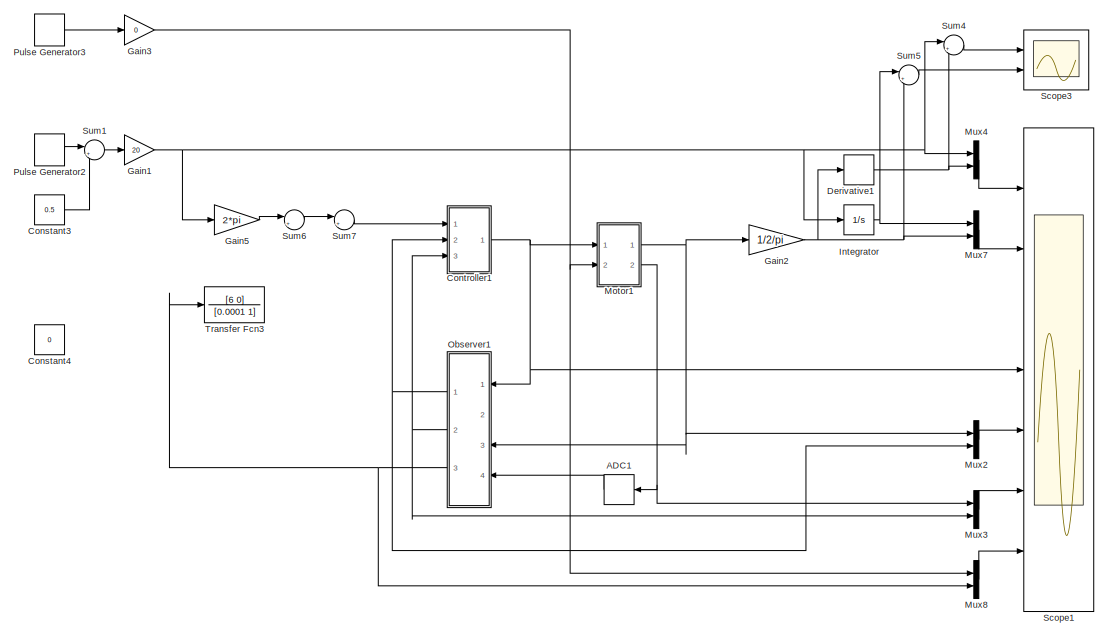
[diagram: root canvas - part 1/2, full width, top band]
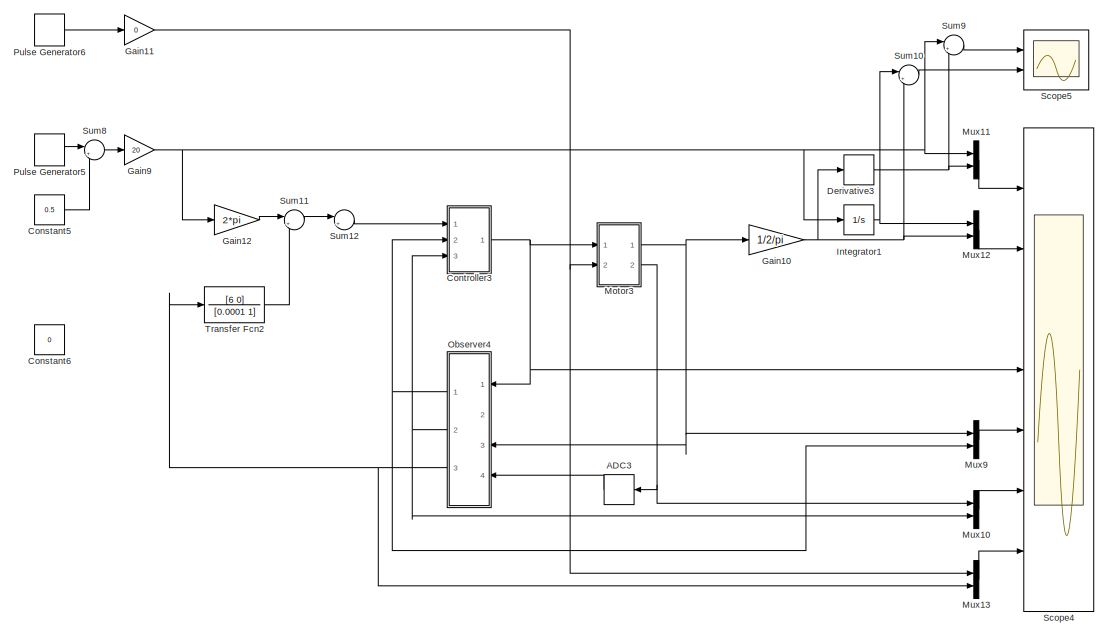
[diagram: root canvas - part 2/2, full width, bottom band]
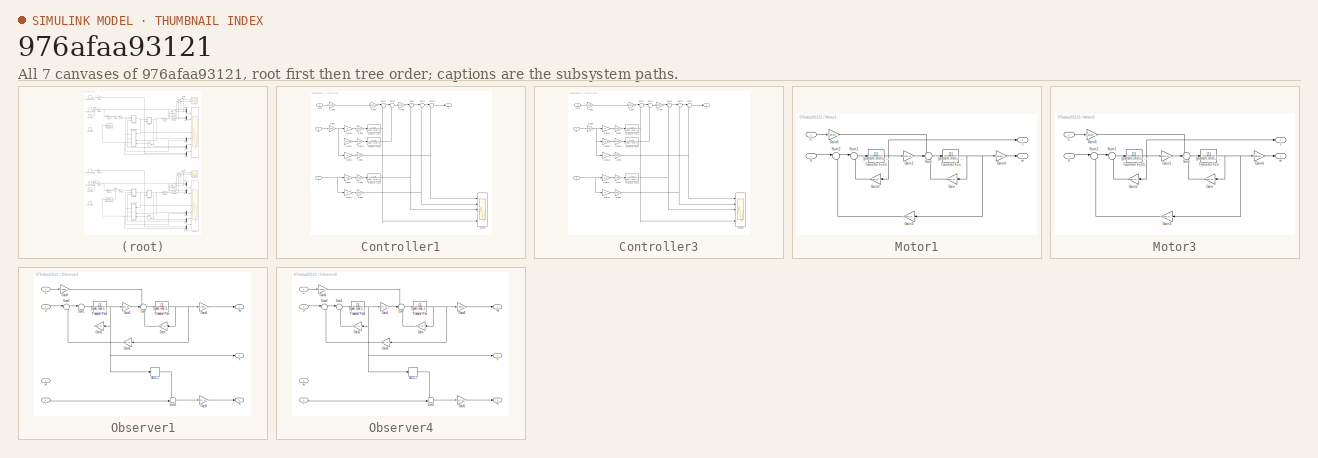
[diagram: thumbnail index - all 7 canvases of the model, root first then tree order]
MODEL slx_976afaa93121
KIND model
BLOCK [TransportDelay] ADC1
  DelayTime = 78/2/param.fadc
  Ports = [1, 1]
BLOCK [TransportDelay] ADC3
  DelayTime = 78/2/144000
  Ports = [1, 1]
BLOCK [Constant] Constant3
  Value = 0.5
BLOCK [Constant] Constant4
  Value = 0
BLOCK [Constant] Constant5
  Value = 0.5
BLOCK [Constant] Constant6
  Value = 0
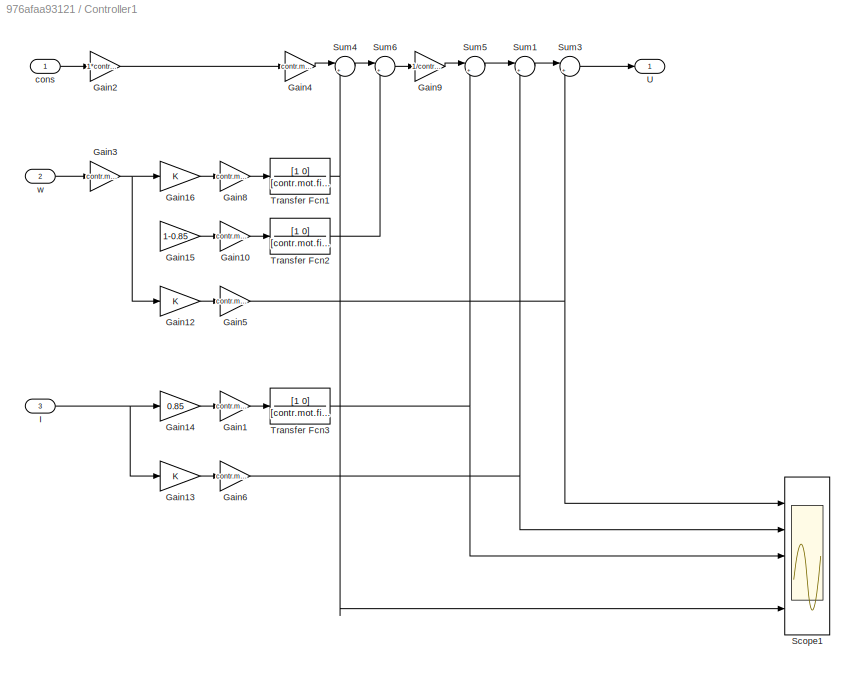
BLOCK [SubSystem] Controller1
  Ports = [3, 1]
  RequestExecContextInheritance = off
BLOCK [Gain] Controller1/Gain1
  Gain = contr.mot.L
  OutDataTypeStr = Inherit: Inherit via internal rule
  ParamDataTypeStr = Inherit: Inherit via internal rule
  SaturateOnIntegerOverflow = off
BLOCK [Gain] Controller1/Gain10
  Gain = contr.mot.f*contr.mot.L
  OutDataTypeStr = Inherit: Inherit via internal rule
  ParamDataTypeStr = Inherit: Inherit via internal rule
  SaturateOnIntegerOverflow = off
BLOCK [Gain] Controller1/Gain12
  OutDataTypeStr = Inherit: Inherit via internal rule
  ParamDataTypeStr = Inherit: Inherit via internal rule
  SaturateOnIntegerOverflow = off
BLOCK [Gain] Controller1/Gain13
  OutDataTypeStr = Inherit: Inherit via internal rule
  ParamDataTypeStr = Inherit: Inherit via internal rule
  SaturateOnIntegerOverflow = off
BLOCK [Gain] Controller1/Gain14
  Gain = 0.85
  OutDataTypeStr = Inherit: Inherit via internal rule
  ParamDataTypeStr = Inherit: Inherit via internal rule
  SaturateOnIntegerOverflow = off
BLOCK [Gain] Controller1/Gain15
  Gain = 1-0.85
  OutDataTypeStr = Inherit: Inherit via internal rule
  ParamDataTypeStr = Inherit: Inherit via internal rule
  SaturateOnIntegerOverflow = off
BLOCK [Gain] Controller1/Gain16
  OutDataTypeStr = Inherit: Inherit via internal rule
  ParamDataTypeStr = Inherit: Inherit via internal rule
  SaturateOnIntegerOverflow = off
BLOCK [Gain] Controller1/Gain2
  Gain = 1*contr.mot.rr/contr.mot.rn
  OutDataTypeStr = Inherit: Inherit via internal rule
  ParamDataTypeStr = Inherit: Inherit via internal rule
  SaturateOnIntegerOverflow = off
BLOCK [Gain] Controller1/Gain3
  Gain = contr.mot.rr
  OutDataTypeStr = Inherit: Inherit via internal rule
  ParamDataTypeStr = Inherit: Inherit via internal rule
  SaturateOnIntegerOverflow = off
BLOCK [Gain] Controller1/Gain4
  Gain = contr.mot.J
  OutDataTypeStr = Inherit: Inherit via internal rule
  ParamDataTypeStr = Inherit: Inherit via internal rule
  SaturateOnIntegerOverflow = off
BLOCK [Gain] Controller1/Gain5
  Gain = contr.mot.Ke
  OutDataTypeStr = Inherit: Inherit via internal rule
  ParamDataTypeStr = Inherit: Inherit via internal rule
  SaturateOnIntegerOverflow = off
BLOCK [Gain] Controller1/Gain6
  Gain = contr.mot.R
  OutDataTypeStr = Inherit: Inherit via internal rule
  ParamDataTypeStr = Inherit: Inherit via internal rule
  SaturateOnIntegerOverflow = off
BLOCK [Gain] Controller1/Gain8
  Gain = contr.mot.J
  OutDataTypeStr = Inherit: Inherit via internal rule
  ParamDataTypeStr = Inherit: Inherit via internal rule
  SaturateOnIntegerOverflow = off
BLOCK [Gain] Controller1/Gain9
  Gain = 1/contr.mot.Kc
  OutDataTypeStr = Inherit: Inherit via internal rule
  ParamDataTypeStr = Inherit: Inherit via internal rule
  SaturateOnIntegerOverflow = off
BLOCK [Inport] Controller1/I
  IconDisplay = Port number
  Port = 3
BLOCK [Scope] Controller1/Scope1
  Floating = off
  MaxDataPoints = 500000
  NumInputPorts = 5
  Ports = [5]
  SaveName = ScopeData1
  ShowLegends = off
  TimeRange = 10
  YMax = 30~5~1~1~0.04
  YMin = -30~-5~-1~-1~-0.04
BLOCK [Sum] Controller1/Sum1
  IconShape = round
  InputSameDT = off
  Inputs = |++
  OutDataTypeStr = Inherit: Inherit via internal rule
  Ports = [2, 1]
  SaturateOnIntegerOverflow = off
BLOCK [Sum] Controller1/Sum3
  IconShape = round
  InputSameDT = off
  Inputs = |++
  OutDataTypeStr = Inherit: Inherit via internal rule
  Ports = [2, 1]
  SaturateOnIntegerOverflow = off
BLOCK [Sum] Controller1/Sum4
  IconShape = round
  InputSameDT = off
  Inputs = |+-
  OutDataTypeStr = Inherit: Inherit via internal rule
  Ports = [2, 1]
  SaturateOnIntegerOverflow = off
BLOCK [Sum] Controller1/Sum5
  IconShape = round
  InputSameDT = off
  Inputs = |++
  OutDataTypeStr = Inherit: Inherit via internal rule
  Ports = [2, 1]
  SaturateOnIntegerOverflow = off
BLOCK [Sum] Controller1/Sum6
  IconShape = round
  InputSameDT = off
  Inputs = |++
  OutDataTypeStr = Inherit: Inherit via internal rule
  Ports = [2, 1]
  SaturateOnIntegerOverflow = off
BLOCK [TransferFcn] Controller1/Transfer Fcn1
  Denominator = [contr.mot.filter 1]
  Numerator = [1 0]
BLOCK [TransferFcn] Controller1/Transfer Fcn2
  Denominator = [contr.mot.filter 1]
  Numerator = [1 0]
BLOCK [TransferFcn] Controller1/Transfer Fcn3
  Denominator = [contr.mot.filter 1]
  Numerator = [1 0]
BLOCK [Outport] Controller1/U
  IconDisplay = Port number
BLOCK [Inport] Controller1/cons
  IconDisplay = Port number
BLOCK [Inport] Controller1/w
  IconDisplay = Port number
  Port = 2
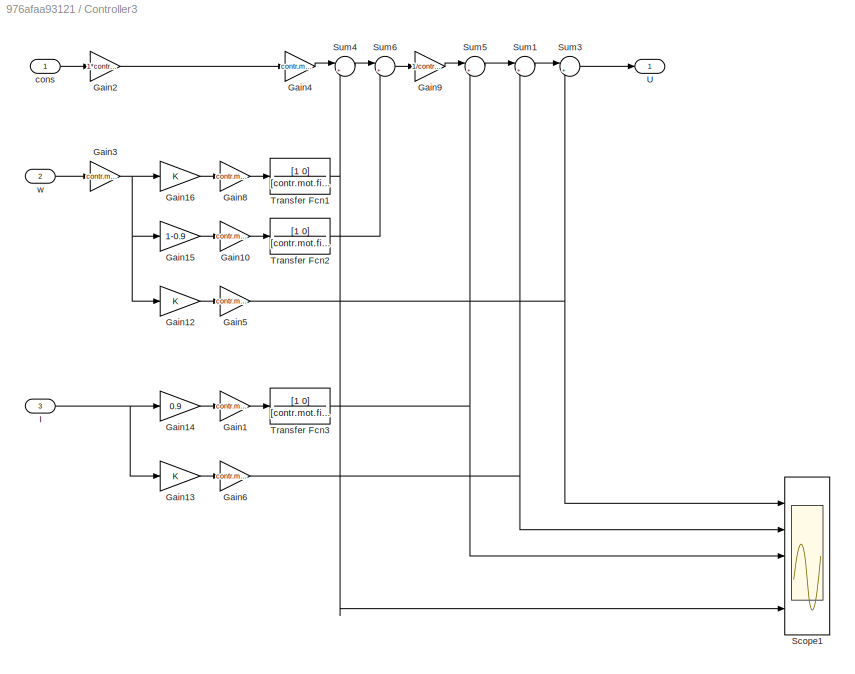
BLOCK [SubSystem] Controller3
  Ports = [3, 1]
  RequestExecContextInheritance = off
BLOCK [Gain] Controller3/Gain1
  Gain = contr.mot.L
  OutDataTypeStr = Inherit: Inherit via internal rule
  ParamDataTypeStr = Inherit: Inherit via internal rule
  SaturateOnIntegerOverflow = off
BLOCK [Gain] Controller3/Gain10
  Gain = contr.mot.f*contr.mot.L
  OutDataTypeStr = Inherit: Inherit via internal rule
  ParamDataTypeStr = Inherit: Inherit via internal rule
  SaturateOnIntegerOverflow = off
BLOCK [Gain] Controller3/Gain12
  OutDataTypeStr = Inherit: Inherit via internal rule
  ParamDataTypeStr = Inherit: Inherit via internal rule
  SaturateOnIntegerOverflow = off
BLOCK [Gain] Controller3/Gain13
  OutDataTypeStr = Inherit: Inherit via internal rule
  ParamDataTypeStr = Inherit: Inherit via internal rule
  SaturateOnIntegerOverflow = off
BLOCK [Gain] Controller3/Gain14
  Gain = 0.9
  OutDataTypeStr = Inherit: Inherit via internal rule
  ParamDataTypeStr = Inherit: Inherit via internal rule
  SaturateOnIntegerOverflow = off
BLOCK [Gain] Controller3/Gain15
  Gain = 1-0.9
  OutDataTypeStr = Inherit: Inherit via internal rule
  ParamDataTypeStr = Inherit: Inherit via internal rule
  SaturateOnIntegerOverflow = off
BLOCK [Gain] Controller3/Gain16
  OutDataTypeStr = Inherit: Inherit via internal rule
  ParamDataTypeStr = Inherit: Inherit via internal rule
  SaturateOnIntegerOverflow = off
BLOCK [Gain] Controller3/Gain2
  Gain = 1*contr.mot.rr/contr.mot.rn
  OutDataTypeStr = Inherit: Inherit via internal rule
  ParamDataTypeStr = Inherit: Inherit via internal rule
  SaturateOnIntegerOverflow = off
BLOCK [Gain] Controller3/Gain3
  Gain = contr.mot.rr
  OutDataTypeStr = Inherit: Inherit via internal rule
  ParamDataTypeStr = Inherit: Inherit via internal rule
  SaturateOnIntegerOverflow = off
BLOCK [Gain] Controller3/Gain4
  Gain = contr.mot.J
  OutDataTypeStr = Inherit: Inherit via internal rule
  ParamDataTypeStr = Inherit: Inherit via internal rule
  SaturateOnIntegerOverflow = off
BLOCK [Gain] Controller3/Gain5
  Gain = contr.mot.Ke
  OutDataTypeStr = Inherit: Inherit via internal rule
  ParamDataTypeStr = Inherit: Inherit via internal rule
  SaturateOnIntegerOverflow = off
BLOCK [Gain] Controller3/Gain6
  Gain = contr.mot.R
  OutDataTypeStr = Inherit: Inherit via internal rule
  ParamDataTypeStr = Inherit: Inherit via internal rule
  SaturateOnIntegerOverflow = off
BLOCK [Gain] Controller3/Gain8
  Gain = contr.mot.J
  OutDataTypeStr = Inherit: Inherit via internal rule
  ParamDataTypeStr = Inherit: Inherit via internal rule
  SaturateOnIntegerOverflow = off
BLOCK [Gain] Controller3/Gain9
  Gain = 1/contr.mot.Kc
  OutDataTypeStr = Inherit: Inherit via internal rule
  ParamDataTypeStr = Inherit: Inherit via internal rule
  SaturateOnIntegerOverflow = off
BLOCK [Inport] Controller3/I
  IconDisplay = Port number
  Port = 3
BLOCK [Scope] Controller3/Scope1
  Floating = off
  MaxDataPoints = 500000
  NumInputPorts = 5
  Ports = [5]
  SaveName = ScopeData1
  ShowLegends = off
  TimeRange = 10
  YMax = 30~5~1~1~0.04
  YMin = -30~-5~-1~-1~-0.04
BLOCK [Sum] Controller3/Sum1
  IconShape = round
  InputSameDT = off
  Inputs = |++
  OutDataTypeStr = Inherit: Inherit via internal rule
  Ports = [2, 1]
  SaturateOnIntegerOverflow = off
BLOCK [Sum] Controller3/Sum3
  IconShape = round
  InputSameDT = off
  Inputs = |++
  OutDataTypeStr = Inherit: Inherit via internal rule
  Ports = [2, 1]
  SaturateOnIntegerOverflow = off
BLOCK [Sum] Controller3/Sum4
  IconShape = round
  InputSameDT = off
  Inputs = |+-
  OutDataTypeStr = Inherit: Inherit via internal rule
  Ports = [2, 1]
  SaturateOnIntegerOverflow = off
BLOCK [Sum] Controller3/Sum5
  IconShape = round
  InputSameDT = off
  Inputs = |++
  OutDataTypeStr = Inherit: Inherit via internal rule
  Ports = [2, 1]
  SaturateOnIntegerOverflow = off
BLOCK [Sum] Controller3/Sum6
  IconShape = round
  InputSameDT = off
  Inputs = |++
  OutDataTypeStr = Inherit: Inherit via internal rule
  Ports = [2, 1]
  SaturateOnIntegerOverflow = off
BLOCK [TransferFcn] Controller3/Transfer Fcn1
  Denominator = [contr.mot.filter 1]
  Numerator = [1 0]
BLOCK [TransferFcn] Controller3/Transfer Fcn2
  Denominator = [contr.mot.filter 1]
  Numerator = [1 0]
BLOCK [TransferFcn] Controller3/Transfer Fcn3
  Denominator = [contr.mot.filter 1]
  Numerator = [1 0]
BLOCK [Outport] Controller3/U
  IconDisplay = Port number
BLOCK [Inport] Controller3/cons
  IconDisplay = Port number
BLOCK [Inport] Controller3/w
  IconDisplay = Port number
  Port = 2
BLOCK [Derivative] Derivative1
BLOCK [Derivative] Derivative3
BLOCK [Gain] Gain1
  Gain = 20
  OutDataTypeStr = Inherit: Inherit via internal rule
  ParamDataTypeStr = Inherit: Inherit via internal rule
  SaturateOnIntegerOverflow = off
BLOCK [Gain] Gain10
  Gain = 1/2/pi
  OutDataTypeStr = Inherit: Inherit via internal rule
  ParamDataTypeStr = Inherit: Inherit via internal rule
  SaturateOnIntegerOverflow = off
BLOCK [Gain] Gain11
  Gain = 0
  OutDataTypeStr = Inherit: Inherit via internal rule
  ParamDataTypeStr = Inherit: Inherit via internal rule
  SaturateOnIntegerOverflow = off
BLOCK [Gain] Gain12
  Gain = 2*pi
  OutDataTypeStr = Inherit: Inherit via internal rule
  ParamDataTypeStr = Inherit: Inherit via internal rule
  SaturateOnIntegerOverflow = off
BLOCK [Gain] Gain2
  Gain = 1/2/pi
  OutDataTypeStr = Inherit: Inherit via internal rule
  ParamDataTypeStr = Inherit: Inherit via internal rule
  SaturateOnIntegerOverflow = off
BLOCK [Gain] Gain3
  Gain = 0
  OutDataTypeStr = Inherit: Inherit via internal rule
  ParamDataTypeStr = Inherit: Inherit via internal rule
  SaturateOnIntegerOverflow = off
BLOCK [Gain] Gain5
  Gain = 2*pi
  OutDataTypeStr = Inherit: Inherit via internal rule
  ParamDataTypeStr = Inherit: Inherit via internal rule
  SaturateOnIntegerOverflow = off
BLOCK [Gain] Gain9
  Gain = 20
  OutDataTypeStr = Inherit: Inherit via internal rule
  ParamDataTypeStr = Inherit: Inherit via internal rule
  SaturateOnIntegerOverflow = off
BLOCK [Integrator] Integrator
  Ports = [1, 1]
BLOCK [Integrator] Integrator1
  Ports = [1, 1]
BLOCK [SubSystem] Motor1
  Ports = [2, 2]
  RequestExecContextInheritance = off
BLOCK [Inport] Motor1/C
  IconDisplay = Port number
  Port = 2
BLOCK [Gain] Motor1/Gain
  Gain = param.mot.f
  OutDataTypeStr = Inherit: Inherit via internal rule
  ParamDataTypeStr = Inherit: Inherit via internal rule
  SaturateOnIntegerOverflow = off
BLOCK [Gain] Motor1/Gain1
  Gain = param.mot.Kc
  OutDataTypeStr = Inherit: Inherit via internal rule
  ParamDataTypeStr = Inherit: Inherit via internal rule
  SaturateOnIntegerOverflow = off
BLOCK [Gain] Motor1/Gain2
  Gain = param.mot.R
  OutDataTypeStr = Inherit: Inherit via internal rule
  ParamDataTypeStr = Inherit: Inherit via internal rule
  SaturateOnIntegerOverflow = off
BLOCK [Gain] Motor1/Gain3
  Gain = param.mot.Ke
  OutDataTypeStr = Inherit: Inherit via internal rule
  ParamDataTypeStr = Inherit: Inherit via internal rule
  SaturateOnIntegerOverflow = off
BLOCK [Gain] Motor1/Gain4
  Gain = 1/param.mot.rr
  OutDataTypeStr = Inherit: Inherit via internal rule
  ParamDataTypeStr = Inherit: Inherit via internal rule
  SaturateOnIntegerOverflow = off
BLOCK [Gain] Motor1/Gain6
  Gain = 1/param.mot.rr/param.mot.rn
  OutDataTypeStr = Inherit: Inherit via internal rule
  ParamDataTypeStr = Inherit: Inherit via internal rule
  SaturateOnIntegerOverflow = off
BLOCK [Outport] Motor1/I
  IconDisplay = Port number
  Port = 2
BLOCK [Sum] Motor1/Sum
  IconShape = round
  InputSameDT = off
  Inputs = -+-
  OutDataTypeStr = Inherit: Inherit via internal rule
  Ports = [3, 1]
  SaturateOnIntegerOverflow = off
BLOCK [Sum] Motor1/Sum1
  IconShape = round
  InputSameDT = off
  Inputs = |+-
  OutDataTypeStr = Inherit: Inherit via internal rule
  Ports = [2, 1]
  SaturateOnIntegerOverflow = off
BLOCK [Sum] Motor1/Sum2
  IconShape = round
  InputSameDT = off
  Inputs = |+-
  OutDataTypeStr = Inherit: Inherit via internal rule
  Ports = [2, 1]
  SaturateOnIntegerOverflow = off
BLOCK [TransferFcn] Motor1/Transfer Fcn
  Denominator = [param.mot.J 0]
BLOCK [TransferFcn] Motor1/Transfer Fcn1
  Denominator = [param.mot.L 0]
BLOCK [Inport] Motor1/U
  IconDisplay = Port number
BLOCK [Outport] Motor1/w
  IconDisplay = Port number
BLOCK [SubSystem] Motor3
  Ports = [2, 2]
  RequestExecContextInheritance = off
BLOCK [Inport] Motor3/C
  IconDisplay = Port number
  Port = 2
BLOCK [Gain] Motor3/Gain
  Gain = param.mot.f
  OutDataTypeStr = Inherit: Inherit via internal rule
  ParamDataTypeStr = Inherit: Inherit via internal rule
  SaturateOnIntegerOverflow = off
BLOCK [Gain] Motor3/Gain1
  Gain = param.mot.Kc
  OutDataTypeStr = Inherit: Inherit via internal rule
  ParamDataTypeStr = Inherit: Inherit via internal rule
  SaturateOnIntegerOverflow = off
BLOCK [Gain] Motor3/Gain2
  Gain = param.mot.R
  OutDataTypeStr = Inherit: Inherit via internal rule
  ParamDataTypeStr = Inherit: Inherit via internal rule
  SaturateOnIntegerOverflow = off
BLOCK [Gain] Motor3/Gain3
  Gain = param.mot.Ke
  OutDataTypeStr = Inherit: Inherit via internal rule
  ParamDataTypeStr = Inherit: Inherit via internal rule
  SaturateOnIntegerOverflow = off
BLOCK [Gain] Motor3/Gain4
  Gain = 1/param.mot.rr
  OutDataTypeStr = Inherit: Inherit via internal rule
  ParamDataTypeStr = Inherit: Inherit via internal rule
  SaturateOnIntegerOverflow = off
BLOCK [Gain] Motor3/Gain6
  Gain = 1/param.mot.rr/param.mot.rn
  OutDataTypeStr = Inherit: Inherit via internal rule
  ParamDataTypeStr = Inherit: Inherit via internal rule
  SaturateOnIntegerOverflow = off
BLOCK [Outport] Motor3/I
  IconDisplay = Port number
  Port = 2
BLOCK [Sum] Motor3/Sum
  IconShape = round
  InputSameDT = off
  Inputs = -+-
  OutDataTypeStr = Inherit: Inherit via internal rule
  Ports = [3, 1]
  SaturateOnIntegerOverflow = off
BLOCK [Sum] Motor3/Sum1
  IconShape = round
  InputSameDT = off
  Inputs = |+-
  OutDataTypeStr = Inherit: Inherit via internal rule
  Ports = [2, 1]
  SaturateOnIntegerOverflow = off
BLOCK [Sum] Motor3/Sum2
  IconShape = round
  InputSameDT = off
  Inputs = |+-
  OutDataTypeStr = Inherit: Inherit via internal rule
  Ports = [2, 1]
  SaturateOnIntegerOverflow = off
BLOCK [TransferFcn] Motor3/Transfer Fcn
  Denominator = [param.mot.J 0]
BLOCK [TransferFcn] Motor3/Transfer Fcn1
  Denominator = [param.mot.L 0]
BLOCK [Inport] Motor3/U
  IconDisplay = Port number
BLOCK [Outport] Motor3/w
  IconDisplay = Port number
BLOCK [Mux] Mux10
  DisplayOption = bar
  Inputs = 2
  Ports = [2, 1]
BLOCK [Mux] Mux11
  DisplayOption = bar
  Inputs = 2
  Ports = [2, 1]
BLOCK [Mux] Mux12
  DisplayOption = bar
  Inputs = 2
  Ports = [2, 1]
BLOCK [Mux] Mux13
  DisplayOption = bar
  Inputs = 2
  Ports = [2, 1]
BLOCK [Mux] Mux2
  DisplayOption = bar
  Inputs = 2
  Ports = [2, 1]
BLOCK [Mux] Mux3
  DisplayOption = bar
  Inputs = 2
  Ports = [2, 1]
BLOCK [Mux] Mux4
  DisplayOption = bar
  Inputs = 2
  Ports = [2, 1]
BLOCK [Mux] Mux7
  DisplayOption = bar
  Inputs = 2
  Ports = [2, 1]
BLOCK [Mux] Mux8
  DisplayOption = bar
  Inputs = 2
  Ports = [2, 1]
BLOCK [Mux] Mux9
  DisplayOption = bar
  Inputs = 2
  Ports = [2, 1]
BLOCK [SubSystem] Observer1
  Ports = [4, 3]
  RequestExecContextInheritance = off
BLOCK [TransportDelay] Observer1/ADC1
  DelayTime = 78/2/param.fadc
  Ports = [1, 1]
BLOCK [Inport] Observer1/C
  IconDisplay = Port number
  Port = 2
BLOCK [Gain] Observer1/Gain
  Gain = contr.mot.f
  OutDataTypeStr = Inherit: Inherit via internal rule
  ParamDataTypeStr = Inherit: Inherit via internal rule
  SaturateOnIntegerOverflow = off
BLOCK [Gain] Observer1/Gain1
  Gain = contr.mot.Kc
  OutDataTypeStr = Inherit: Inherit via internal rule
  ParamDataTypeStr = Inherit: Inherit via internal rule
  SaturateOnIntegerOverflow = off
BLOCK [Gain] Observer1/Gain2
  Gain = contr.mot.R
  OutDataTypeStr = Inherit: Inherit via internal rule
  ParamDataTypeStr = Inherit: Inherit via internal rule
  SaturateOnIntegerOverflow = off
BLOCK [Gain] Observer1/Gain3
  Gain = contr.mot.Ke
  OutDataTypeStr = Inherit: Inherit via internal rule
  ParamDataTypeStr = Inherit: Inherit via internal rule
  SaturateOnIntegerOverflow = off
BLOCK [Gain] Observer1/Gain4
  Gain = 1/contr.mot.rr
  OutDataTypeStr = Inherit: Inherit via internal rule
  ParamDataTypeStr = Inherit: Inherit via internal rule
  SaturateOnIntegerOverflow = off
BLOCK [Gain] Observer1/Gain5
  Gain = contr.mot.Kc*contr.mot.rr*contr.mot.rn
  OutDataTypeStr = Inherit: Inherit via internal rule
  ParamDataTypeStr = Inherit: Inherit via internal rule
  SaturateOnIntegerOverflow = off
BLOCK [Gain] Observer1/Gain6
  Gain = 1/contr.mot.rr/contr.mot.rn
  OutDataTypeStr = Inherit: Inherit via internal rule
  ParamDataTypeStr = Inherit: Inherit via internal rule
  SaturateOnIntegerOverflow = off
BLOCK [Inport] Observer1/I
  IconDisplay = Port number
  Port = 4
BLOCK [Sum] Observer1/Sum
  IconShape = round
  InputSameDT = off
  Inputs = -+-
  OutDataTypeStr = Inherit: Inherit via internal rule
  Ports = [3, 1]
  SaturateOnIntegerOverflow = off
BLOCK [Sum] Observer1/Sum1
  IconShape = round
  InputSameDT = off
  Inputs = |+-
  OutDataTypeStr = Inherit: Inherit via internal rule
  Ports = [2, 1]
  SaturateOnIntegerOverflow = off
BLOCK [Sum] Observer1/Sum2
  IconShape = round
  InputSameDT = off
  Inputs = |+-
  OutDataTypeStr = Inherit: Inherit via internal rule
  Ports = [2, 1]
  SaturateOnIntegerOverflow = off
BLOCK [Sum] Observer1/Sum3
  IconShape = round
  InputSameDT = off
  Inputs = -+|
  OutDataTypeStr = Inherit: Inherit via internal rule
  Ports = [2, 1]
  SaturateOnIntegerOverflow = off
BLOCK [TransferFcn] Observer1/Transfer Fcn
  Denominator = [contr.mot.J 0]
BLOCK [TransferFcn] Observer1/Transfer Fcn1
  Denominator = [contr.mot.L contr.mot.R]
BLOCK [Inport] Observer1/U
  IconDisplay = Port number
BLOCK [Outport] Observer1/^C
  IconDisplay = Port number
  Port = 3
BLOCK [Outport] Observer1/^I
  IconDisplay = Port number
  Port = 2
BLOCK [Outport] Observer1/^w
  IconDisplay = Port number
BLOCK [Inport] Observer1/w
  IconDisplay = Port number
  Port = 3
BLOCK [SubSystem] Observer4
  Ports = [4, 3]
  RequestExecContextInheritance = off
BLOCK [TransportDelay] Observer4/ADC1
  DelayTime = 78/2/144000
  Ports = [1, 1]
BLOCK [Inport] Observer4/C
  IconDisplay = Port number
  Port = 2
BLOCK [Gain] Observer4/Gain
  Gain = contr.mot.f
  OutDataTypeStr = Inherit: Inherit via internal rule
  ParamDataTypeStr = Inherit: Inherit via internal rule
  SaturateOnIntegerOverflow = off
BLOCK [Gain] Observer4/Gain1
  Gain = contr.mot.Kc
  OutDataTypeStr = Inherit: Inherit via internal rule
  ParamDataTypeStr = Inherit: Inherit via internal rule
  SaturateOnIntegerOverflow = off
BLOCK [Gain] Observer4/Gain2
  Gain = contr.mot.R
  OutDataTypeStr = Inherit: Inherit via internal rule
  ParamDataTypeStr = Inherit: Inherit via internal rule
  SaturateOnIntegerOverflow = off
BLOCK [Gain] Observer4/Gain3
  Gain = contr.mot.Ke
  OutDataTypeStr = Inherit: Inherit via internal rule
  ParamDataTypeStr = Inherit: Inherit via internal rule
  SaturateOnIntegerOverflow = off
BLOCK [Gain] Observer4/Gain4
  Gain = 1/contr.mot.rr
  OutDataTypeStr = Inherit: Inherit via internal rule
  ParamDataTypeStr = Inherit: Inherit via internal rule
  SaturateOnIntegerOverflow = off
BLOCK [Gain] Observer4/Gain5
  Gain = contr.mot.Kc*contr.mot.rr*contr.mot.rn
  OutDataTypeStr = Inherit: Inherit via internal rule
  ParamDataTypeStr = Inherit: Inherit via internal rule
  SaturateOnIntegerOverflow = off
BLOCK [Gain] Observer4/Gain6
  Gain = 1/contr.mot.rr/contr.mot.rn
  OutDataTypeStr = Inherit: Inherit via internal rule
  ParamDataTypeStr = Inherit: Inherit via internal rule
  SaturateOnIntegerOverflow = off
BLOCK [Inport] Observer4/I
  IconDisplay = Port number
  Port = 4
BLOCK [Sum] Observer4/Sum
  IconShape = round
  InputSameDT = off
  Inputs = -+-
  OutDataTypeStr = Inherit: Inherit via internal rule
  Ports = [3, 1]
  SaturateOnIntegerOverflow = off
BLOCK [Sum] Observer4/Sum1
  IconShape = round
  InputSameDT = off
  Inputs = |+-
  OutDataTypeStr = Inherit: Inherit via internal rule
  Ports = [2, 1]
  SaturateOnIntegerOverflow = off
BLOCK [Sum] Observer4/Sum2
  IconShape = round
  InputSameDT = off
  Inputs = |+-
  OutDataTypeStr = Inherit: Inherit via internal rule
  Ports = [2, 1]
  SaturateOnIntegerOverflow = off
BLOCK [Sum] Observer4/Sum3
  IconShape = round
  InputSameDT = off
  Inputs = -+|
  OutDataTypeStr = Inherit: Inherit via internal rule
  Ports = [2, 1]
  SaturateOnIntegerOverflow = off
BLOCK [TransferFcn] Observer4/Transfer Fcn
  Denominator = [contr.mot.J 0]
BLOCK [TransferFcn] Observer4/Transfer Fcn1
  Denominator = [contr.mot.L 0]
BLOCK [Inport] Observer4/U
  IconDisplay = Port number
BLOCK [Outport] Observer4/^C
  IconDisplay = Port number
  Port = 3
BLOCK [Outport] Observer4/^I
  IconDisplay = Port number
  Port = 2
BLOCK [Outport] Observer4/^w
  IconDisplay = Port number
BLOCK [Inport] Observer4/w
  IconDisplay = Port number
  Port = 3
BLOCK [DiscretePulseGenerator] Pulse Generator2
  Period = 1
  PhaseDelay = 0.25
  Ports = [0, 1]
  PulseType = Time based
  PulseWidth = 50
BLOCK [DiscretePulseGenerator] Pulse Generator3
  Period = 0.35
  PhaseDelay = 0.3
  Ports = [0, 1]
  PulseType = Time based
  PulseWidth = 50
BLOCK [DiscretePulseGenerator] Pulse Generator5
  Period = 1
  PhaseDelay = 0.25
  Ports = [0, 1]
  PulseType = Time based
  PulseWidth = 50
BLOCK [DiscretePulseGenerator] Pulse Generator6
  Period = 0.35
  PhaseDelay = 0.3
  Ports = [0, 1]
  PulseType = Time based
  PulseWidth = 50
BLOCK [Scope] Scope1
  Floating = off
  MaxDataPoints = 500000
  NumInputPorts = 7
  Ports = [7]
  SaveName = ScopeData2
  ShowLegends = off
  TimeRange = 3
  YMax = 20~4~1~20~20~1~1
  YMin = -20~-4~-1~-20~-20~-1~-1
BLOCK [Scope] Scope3
  Floating = off
  MaxDataPoints = 500000
  NumInputPorts = 2
  Ports = [2]
  SaveName = ScopeData3
  ShowLegends = off
  TimeRange = 3
  YMax = 25~0.0025
  YMin = -25~-0.0025
  ZoomMode = yonly
BLOCK [Scope] Scope4
  Floating = off
  MaxDataPoints = 500000
  NumInputPorts = 7
  Ports = [7]
  SaveName = ScopeData4
  ShowLegends = off
  TimeRange = 3
  YMax = 20~4~1~20~20~1~1
  YMin = -20~-4~-1~-20~-20~-1~-1
BLOCK [Scope] Scope5
  Floating = off
  MaxDataPoints = 500000
  NumInputPorts = 2
  Ports = [2]
  SaveName = ScopeData5
  ShowLegends = off
  TimeRange = 3
  YMax = 25~0.0025
  YMin = -25~-0.0025
  ZoomMode = yonly
BLOCK [Sum] Sum1
  IconShape = round
  InputSameDT = off
  Inputs = |+-
  OutDataTypeStr = Inherit: Inherit via internal rule
  Ports = [2, 1]
  SaturateOnIntegerOverflow = off
BLOCK [Sum] Sum10
  IconShape = round
  InputSameDT = off
  Inputs = |+-
  OutDataTypeStr = Inherit: Inherit via internal rule
  Ports = [2, 1]
  SaturateOnIntegerOverflow = off
BLOCK [Sum] Sum11
  IconShape = round
  InputSameDT = off
  Inputs = |++
  OutDataTypeStr = Inherit: Inherit via internal rule
  Ports = [2, 1]
  SaturateOnIntegerOverflow = off
BLOCK [Sum] Sum12
  IconShape = round
  InputSameDT = off
  Inputs = |++
  OutDataTypeStr = Inherit: Inherit via internal rule
  Ports = [2, 1]
  SaturateOnIntegerOverflow = off
BLOCK [Sum] Sum4
  IconShape = round
  InputSameDT = off
  Inputs = |+-
  OutDataTypeStr = Inherit: Inherit via internal rule
  Ports = [2, 1]
  SaturateOnIntegerOverflow = off
BLOCK [Sum] Sum5
  IconShape = round
  InputSameDT = off
  Inputs = |+-
  OutDataTypeStr = Inherit: Inherit via internal rule
  Ports = [2, 1]
  SaturateOnIntegerOverflow = off
BLOCK [Sum] Sum6
  IconShape = round
  InputSameDT = off
  Inputs = |++
  OutDataTypeStr = Inherit: Inherit via internal rule
  Ports = [2, 1]
  SaturateOnIntegerOverflow = off
BLOCK [Sum] Sum7
  IconShape = round
  InputSameDT = off
  Inputs = |++
  OutDataTypeStr = Inherit: Inherit via internal rule
  Ports = [2, 1]
  SaturateOnIntegerOverflow = off
BLOCK [Sum] Sum8
  IconShape = round
  InputSameDT = off
  Inputs = |+-
  OutDataTypeStr = Inherit: Inherit via internal rule
  Ports = [2, 1]
  SaturateOnIntegerOverflow = off
BLOCK [Sum] Sum9
  IconShape = round
  InputSameDT = off
  Inputs = |+-
  OutDataTypeStr = Inherit: Inherit via internal rule
  Ports = [2, 1]
  SaturateOnIntegerOverflow = off
BLOCK [TransferFcn] Transfer Fcn2
  Denominator = [0.0001 1]
  Numerator = [6 0]
BLOCK [TransferFcn] Transfer Fcn3
  Denominator = [0.0001 1]
  Numerator = [6 0]
LINE ADC1:1 -> Observer1:4
LINE ADC3:1 -> Observer4:4
LINE Constant3:1 -> Sum1:2
LINE Constant5:1 -> Sum8:2
LINE Controller1/Gain10:1 -> Controller1/Transfer Fcn2:1
LINE Controller1/Gain12:1 -> Controller1/Gain5:1
LINE Controller1/Gain13:1 -> Controller1/Gain6:1
LINE Controller1/Gain14:1 -> Controller1/Gain1:1
LINE Controller1/Gain15:1 -> Controller1/Gain10:1
LINE Controller1/Gain16:1 -> Controller1/Gain8:1
LINE Controller1/Gain1:1 -> Controller1/Transfer Fcn3:1
LINE Controller1/Gain2:1 -> Controller1/Gain4:1
NET Controller1/Gain3:1 -> Controller1/Gain12:1, Controller1/Gain16:1
LINE Controller1/Gain4:1 -> Controller1/Sum4:1
NET Controller1/Gain5:1 -> Controller1/Scope1:1, Controller1/Sum3:2
NET Controller1/Gain6:1 -> Controller1/Scope1:2, Controller1/Sum1:2
LINE Controller1/Gain8:1 -> Controller1/Transfer Fcn1:1
LINE Controller1/Gain9:1 -> Controller1/Sum5:1
NET Controller1/I:1 -> Controller1/Gain13:1, Controller1/Gain14:1
LINE Controller1/Sum1:1 -> Controller1/Sum3:1
LINE Controller1/Sum3:1 -> Controller1/U:1
LINE Controller1/Sum4:1 -> Controller1/Sum6:1
LINE Controller1/Sum5:1 -> Controller1/Sum1:1
LINE Controller1/Sum6:1 -> Controller1/Gain9:1
NET Controller1/Transfer Fcn1:1 -> Controller1/Scope1:5, Controller1/Sum4:2
LINE Controller1/Transfer Fcn2:1 -> Controller1/Sum6:2
NET Controller1/Transfer Fcn3:1 -> Controller1/Scope1:3, Controller1/Sum5:2
LINE Controller1/cons:1 -> Controller1/Gain2:1
LINE Controller1/w:1 -> Controller1/Gain3:1
NET Controller1:1 -> Motor1:1, Observer1:1, Scope1:4
LINE Controller3/Gain10:1 -> Controller3/Transfer Fcn2:1
LINE Controller3/Gain12:1 -> Controller3/Gain5:1
LINE Controller3/Gain13:1 -> Controller3/Gain6:1
LINE Controller3/Gain14:1 -> Controller3/Gain1:1
LINE Controller3/Gain15:1 -> Controller3/Gain10:1
LINE Controller3/Gain16:1 -> Controller3/Gain8:1
LINE Controller3/Gain1:1 -> Controller3/Transfer Fcn3:1
LINE Controller3/Gain2:1 -> Controller3/Gain4:1
NET Controller3/Gain3:1 -> Controller3/Gain12:1, Controller3/Gain15:1, Controller3/Gain16:1
LINE Controller3/Gain4:1 -> Controller3/Sum4:1
NET Controller3/Gain5:1 -> Controller3/Scope1:1, Controller3/Sum3:2
NET Controller3/Gain6:1 -> Controller3/Scope1:2, Controller3/Sum1:2
LINE Controller3/Gain8:1 -> Controller3/Transfer Fcn1:1
LINE Controller3/Gain9:1 -> Controller3/Sum5:1
NET Controller3/I:1 -> Controller3/Gain13:1, Controller3/Gain14:1
LINE Controller3/Sum1:1 -> Controller3/Sum3:1
LINE Controller3/Sum3:1 -> Controller3/U:1
LINE Controller3/Sum4:1 -> Controller3/Sum6:1
LINE Controller3/Sum5:1 -> Controller3/Sum1:1
LINE Controller3/Sum6:1 -> Controller3/Gain9:1
NET Controller3/Transfer Fcn1:1 -> Controller3/Scope1:5, Controller3/Sum4:2
LINE Controller3/Transfer Fcn2:1 -> Controller3/Sum6:2
NET Controller3/Transfer Fcn3:1 -> Controller3/Scope1:3, Controller3/Sum5:2
LINE Controller3/cons:1 -> Controller3/Gain2:1
LINE Controller3/w:1 -> Controller3/Gain3:1
NET Controller3:1 -> Motor3:1, Observer4:1, Scope4:4
NET Derivative1:1 -> Mux4:2, Sum4:2
NET Derivative3:1 -> Mux11:2, Sum9:2
NET Gain10:1 -> Derivative3:1, Mux12:2, Sum10:2
NET Gain11:1 -> Motor3:2, Mux13:1
LINE Gain12:1 -> Sum11:1
NET Gain1:1 -> Gain5:1, Integrator:1, Mux4:1, Sum4:1
NET Gain2:1 -> Derivative1:1, Mux7:2, Sum5:2
NET Gain3:1 -> Motor1:2, Mux8:1
LINE Gain5:1 -> Sum6:1
NET Gain9:1 -> Gain12:1, Integrator1:1, Mux11:1, Sum9:1
NET Integrator1:1 -> Mux12:1, Sum10:1
NET Integrator:1 -> Mux7:1, Sum5:1
LINE Motor1/C:1 -> Motor1/Gain6:1
LINE Motor1/Gain1:1 -> Motor1/Sum:2
LINE Motor1/Gain2:1 -> Motor1/Sum1:2
LINE Motor1/Gain3:1 -> Motor1/Sum2:2
LINE Motor1/Gain4:1 -> Motor1/w:1
LINE Motor1/Gain6:1 -> Motor1/Sum:1
LINE Motor1/Gain:1 -> Motor1/Sum:3
LINE Motor1/Sum1:1 -> Motor1/Transfer Fcn1:1
LINE Motor1/Sum2:1 -> Motor1/Sum1:1
LINE Motor1/Sum:1 -> Motor1/Transfer Fcn:1
NET Motor1/Transfer Fcn1:1 -> Motor1/Gain1:1, Motor1/Gain2:1, Motor1/I:1
NET Motor1/Transfer Fcn:1 -> Motor1/Gain3:1, Motor1/Gain4:1, Motor1/Gain:1
LINE Motor1/U:1 -> Motor1/Sum2:1
NET Motor1:1 -> Gain2:1, Mux2:1, Observer1:3
NET Motor1:2 -> ADC1:1, Mux3:1
LINE Motor3/C:1 -> Motor3/Gain6:1
LINE Motor3/Gain1:1 -> Motor3/Sum:2
LINE Motor3/Gain2:1 -> Motor3/Sum1:2
LINE Motor3/Gain3:1 -> Motor3/Sum2:2
LINE Motor3/Gain4:1 -> Motor3/w:1
LINE Motor3/Gain6:1 -> Motor3/Sum:1
LINE Motor3/Gain:1 -> Motor3/Sum:3
LINE Motor3/Sum1:1 -> Motor3/Transfer Fcn1:1
LINE Motor3/Sum2:1 -> Motor3/Sum1:1
LINE Motor3/Sum:1 -> Motor3/Transfer Fcn:1
NET Motor3/Transfer Fcn1:1 -> Motor3/Gain1:1, Motor3/Gain2:1, Motor3/I:1
NET Motor3/Transfer Fcn:1 -> Motor3/Gain3:1, Motor3/Gain4:1, Motor3/Gain:1
LINE Motor3/U:1 -> Motor3/Sum2:1
NET Motor3:1 -> Gain10:1, Mux9:1, Observer4:3
NET Motor3:2 -> ADC3:1, Mux10:1
LINE Mux10:1 -> Scope4:6
LINE Mux11:1 -> Scope4:1
LINE Mux12:1 -> Scope4:2
LINE Mux13:1 -> Scope4:7
LINE Mux2:1 -> Scope1:5
LINE Mux3:1 -> Scope1:6
LINE Mux4:1 -> Scope1:1
LINE Mux7:1 -> Scope1:2
LINE Mux8:1 -> Scope1:7
LINE Mux9:1 -> Scope4:5
LINE Observer1/ADC1:1 -> Observer1/Sum3:1
LINE Observer1/C:1 -> Observer1/Gain6:1
LINE Observer1/Gain1:1 -> Observer1/Sum:2
LINE Observer1/Gain3:1 -> Observer1/Sum2:2
LINE Observer1/Gain4:1 -> Observer1/^w:1
LINE Observer1/Gain5:1 -> Observer1/^C:1
LINE Observer1/Gain6:1 -> Observer1/Sum:1
LINE Observer1/Gain:1 -> Observer1/Sum:3
LINE Observer1/I:1 -> Observer1/Sum3:2
LINE Observer1/Sum1:1 -> Observer1/Transfer Fcn1:1
LINE Observer1/Sum2:1 -> Observer1/Sum1:1
LINE Observer1/Sum3:1 -> Observer1/Gain5:1
LINE Observer1/Sum:1 -> Observer1/Transfer Fcn:1
NET Observer1/Transfer Fcn1:1 -> Observer1/ADC1:1, Observer1/Gain1:1, Observer1/Gain2:1, Observer1/^I:1
NET Observer1/Transfer Fcn:1 -> Observer1/Gain3:1, Observer1/Gain4:1, Observer1/Gain:1
LINE Observer1/U:1 -> Observer1/Sum2:1
NET Observer1:1 -> Controller1:2, Mux2:2
NET Observer1:2 -> Controller1:3, Mux3:2
NET Observer1:3 -> Mux8:2, Transfer Fcn3:1
LINE Observer4/ADC1:1 -> Observer4/Sum3:1
LINE Observer4/C:1 -> Observer4/Gain6:1
LINE Observer4/Gain1:1 -> Observer4/Sum:2
LINE Observer4/Gain2:1 -> Observer4/Sum1:2
LINE Observer4/Gain3:1 -> Observer4/Sum2:2
LINE Observer4/Gain4:1 -> Observer4/^w:1
LINE Observer4/Gain5:1 -> Observer4/^C:1
LINE Observer4/Gain6:1 -> Observer4/Sum:1
LINE Observer4/Gain:1 -> Observer4/Sum:3
LINE Observer4/I:1 -> Observer4/Sum3:2
LINE Observer4/Sum1:1 -> Observer4/Transfer Fcn1:1
LINE Observer4/Sum2:1 -> Observer4/Sum1:1
LINE Observer4/Sum3:1 -> Observer4/Gain5:1
LINE Observer4/Sum:1 -> Observer4/Transfer Fcn:1
NET Observer4/Transfer Fcn1:1 -> Observer4/ADC1:1, Observer4/Gain1:1, Observer4/Gain2:1, Observer4/^I:1
NET Observer4/Transfer Fcn:1 -> Observer4/Gain3:1, Observer4/Gain4:1, Observer4/Gain:1
LINE Observer4/U:1 -> Observer4/Sum2:1
NET Observer4:1 -> Controller3:2, Mux9:2
NET Observer4:2 -> Controller3:3, Mux10:2
NET Observer4:3 -> Mux13:2, Transfer Fcn2:1
LINE Pulse Generator2:1 -> Sum1:1
LINE Pulse Generator3:1 -> Gain3:1
LINE Pulse Generator5:1 -> Sum8:1
LINE Pulse Generator6:1 -> Gain11:1
LINE Sum10:1 -> Scope5:2
LINE Sum11:1 -> Sum12:1
LINE Sum12:1 -> Controller3:1
LINE Sum1:1 -> Gain1:1
LINE Sum4:1 -> Scope3:1
LINE Sum5:1 -> Scope3:2
LINE Sum6:1 -> Sum7:1
LINE Sum7:1 -> Controller1:1
LINE Sum8:1 -> Gain9:1
LINE Sum9:1 -> Scope5:1
LINE Transfer Fcn2:1 -> Sum11:2
note: NET lines group one-source signal fan-out (src -> all destinations, sorted); 1:1 wires keep LINE
